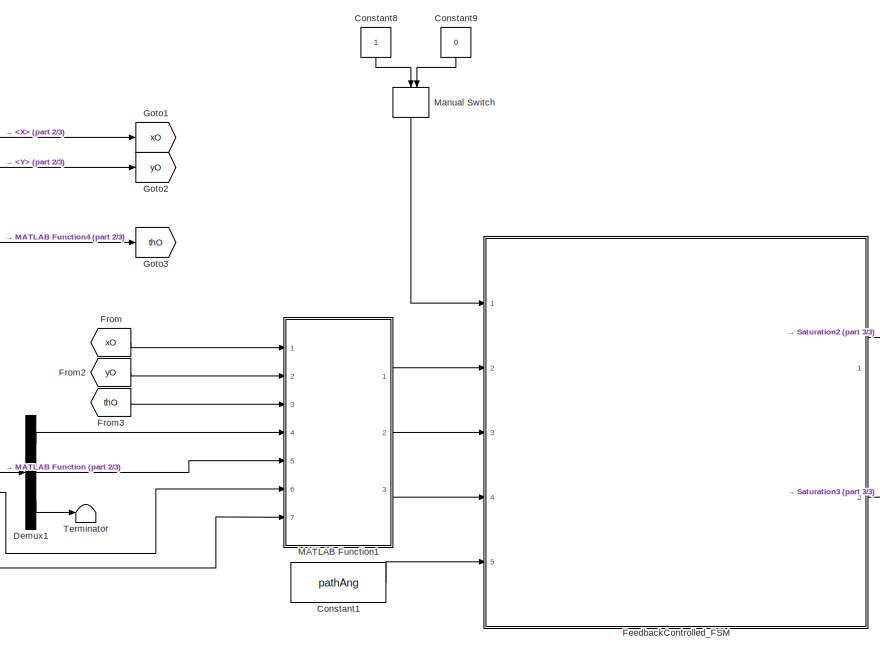
[diagram: root canvas - part 1/3, center side, full height]
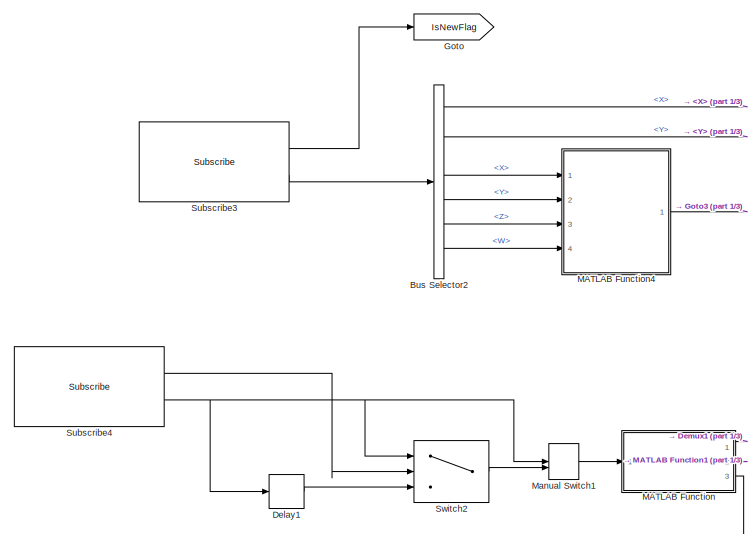
[diagram: root canvas - part 2/3, left side, full height]
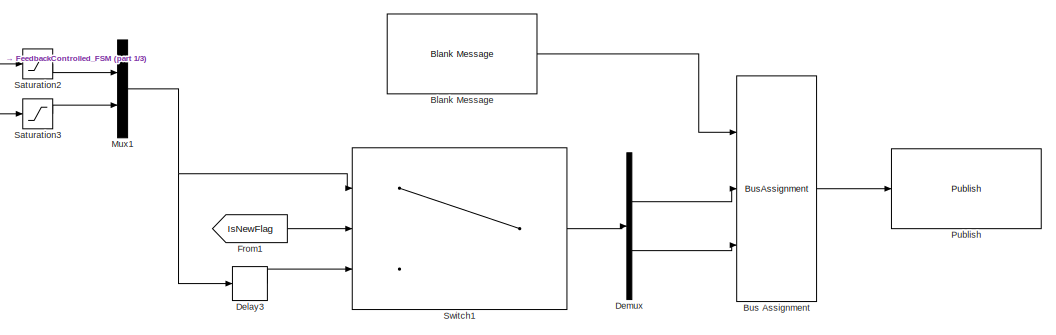
[diagram: root canvas - part 3/3, bottom right region]
MODEL slx_049c260a0925
KIND model
CONFIG AbsTol = auto
CONFIG EnableMultiTasking = off
CONFIG FixedStep = 0.1
CONFIG MaxStep = auto
CONFIG MinStep = auto
CONFIG RelTol = 1e-3
CONFIG SampleTimeConstraint = Unconstrained
CONFIG SolverName = FixedStepAuto
CONFIG StartTime = 0.0
CONFIG StopTime = inf
BLOCK [Reference] Blank Message  REF=robotlib/Blank Message
  Ports = [0, 1]
  SourceBlock = robotlib/Blank Message
  SourceProductBaseCode = RR
  SourceType = ROS Blank Message
BLOCK [BusAssignment] Bus Assignment
  AssignedSignals = Linear.X,Angular.Z
  Ports = [3, 1]
BLOCK [BusSelector] Bus Selector2
  OutputSignals = Pose.Pose.Position.X,Pose.Pose.Position.Y,Pose.Pose.Orientation.X,Pose.Pose.Orientation.Y,Pose.Pose.Orientation.Z,Pose.Pose.Orientation.W
  Ports = [1, 6]
BLOCK [Constant] Constant1
  Value = pathAng
BLOCK [Constant] Constant8
  NameLocation = left
BLOCK [Constant] Constant9
  NameLocation = left
  Value = 0
BLOCK [Delay] Delay1
  DelayLength = 1
  InputPortMap = u0
  Ports = [1, 1]
BLOCK [Delay] Delay3
  DelayLength = 1
  InputPortMap = u0
  Ports = [1, 1]
BLOCK [Demux] Demux
  Outputs = 2
  Ports = [1, 2]
BLOCK [Demux] Demux1
  Outputs = 3
  Ports = [1, 3]
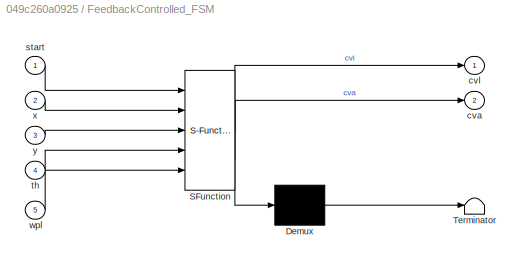
BLOCK [SubSystem] FeedbackControlled_FSM
  ErrorFcn = Stateflow.Translate.translate
  PermitHierarchicalResolution = ExplicitOnly
  Ports = [5, 2]
  RequestExecContextInheritance = off
  SFBlockType = Chart
  TreatAsAtomicUnit = on
BLOCK [Demux] FeedbackControlled_FSM/ Demux 
  Outputs = 1
  Ports = [1, 1]
BLOCK [S-Function] FeedbackControlled_FSM/ SFunction 
  EnableBusSupport = on
  FunctionName = sf_sfun
  PortCounts = [5 3]
  Ports = [5, 3]
  SFcnIsStateOwnerBlock = off
  SFunctionDeploymentMode = off
  Tag = Stateflow S-Function 10
BLOCK [Terminator] FeedbackControlled_FSM/ Terminator 
BLOCK [Outport] FeedbackControlled_FSM/cva
  Port = 2
BLOCK [Outport] FeedbackControlled_FSM/cvl
BLOCK [Inport] FeedbackControlled_FSM/start
BLOCK [Inport] FeedbackControlled_FSM/th
  Port = 4
BLOCK [Inport] FeedbackControlled_FSM/wpl
  Port = 5
BLOCK [Inport] FeedbackControlled_FSM/x
  Port = 2
BLOCK [Inport] FeedbackControlled_FSM/y
  Port = 3
BLOCK [From] From
  GotoTag = xO
BLOCK [From] From1
  GotoTag = IsNewFlag
BLOCK [From] From2
  GotoTag = yO
BLOCK [From] From3
  GotoTag = thO
BLOCK [Goto] Goto
  GotoTag = IsNewFlag
BLOCK [Goto] Goto1
  GotoTag = xO
BLOCK [Goto] Goto2
  GotoTag = yO
BLOCK [Goto] Goto3
  GotoTag = thO
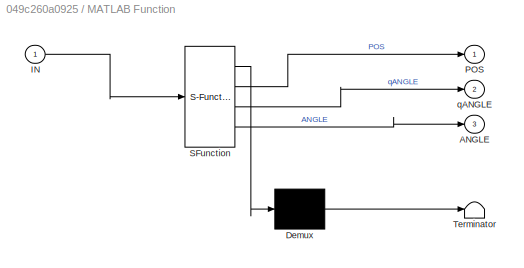
BLOCK [SubSystem] MATLAB Function
  ErrorFcn = Stateflow.Translate.translate
  PermitHierarchicalResolution = ExplicitOnly
  Ports = [1, 3]
  RequestExecContextInheritance = off
  SFBlockType = MATLAB Function
  TreatAsAtomicUnit = on
BLOCK [Demux] MATLAB Function/ Demux 
  Outputs = 1
  Ports = [1, 1]
BLOCK [S-Function] MATLAB Function/ SFunction 
  EnableBusSupport = on
  FunctionName = sf_sfun
  PortCounts = [1 4]
  Ports = [1, 4]
  SFcnIsStateOwnerBlock = off
  SFunctionDeploymentMode = off
  Tag = Stateflow S-Function 2
BLOCK [Terminator] MATLAB Function/ Terminator 
BLOCK [Outport] MATLAB Function/ANGLE
  Port = 3
BLOCK [Inport] MATLAB Function/IN
BLOCK [Outport] MATLAB Function/POS
BLOCK [Outport] MATLAB Function/qANGLE
  Port = 2
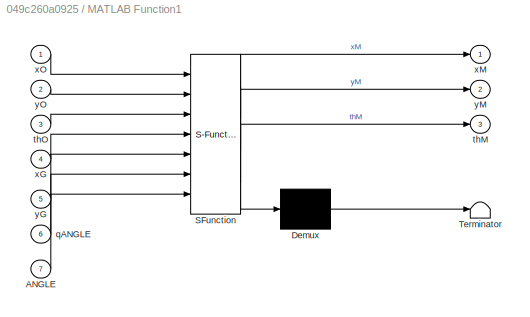
BLOCK [SubSystem] MATLAB Function1
  ErrorFcn = Stateflow.Translate.translate
  PermitHierarchicalResolution = ExplicitOnly
  Ports = [7, 3]
  RequestExecContextInheritance = off
  SFBlockType = MATLAB Function
  TreatAsAtomicUnit = on
BLOCK [Demux] MATLAB Function1/ Demux 
  Outputs = 1
  Ports = [1, 1]
BLOCK [S-Function] MATLAB Function1/ SFunction 
  EnableBusSupport = on
  FunctionName = sf_sfun
  PortCounts = [7 4]
  Ports = [7, 4]
  SFcnIsStateOwnerBlock = off
  SFunctionDeploymentMode = off
  Tag = Stateflow S-Function 1
BLOCK [Terminator] MATLAB Function1/ Terminator 
BLOCK [Inport] MATLAB Function1/ANGLE
  Port = 7
BLOCK [Inport] MATLAB Function1/qANGLE
  Port = 6
BLOCK [Outport] MATLAB Function1/thM
  Port = 3
BLOCK [Inport] MATLAB Function1/thO
  Port = 3
BLOCK [Inport] MATLAB Function1/xG
  Port = 4
BLOCK [Outport] MATLAB Function1/xM
BLOCK [Inport] MATLAB Function1/xO
BLOCK [Inport] MATLAB Function1/yG
  Port = 5
BLOCK [Outport] MATLAB Function1/yM
  Port = 2
BLOCK [Inport] MATLAB Function1/yO
  Port = 2
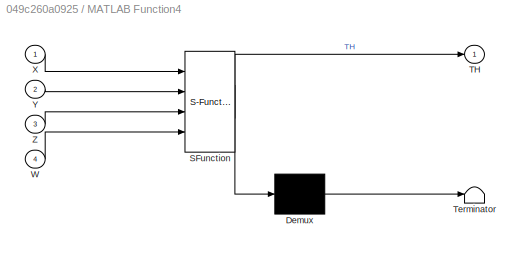
BLOCK [SubSystem] MATLAB Function4
  ErrorFcn = Stateflow.Translate.translate
  PermitHierarchicalResolution = ExplicitOnly
  Ports = [4, 1]
  RequestExecContextInheritance = off
  SFBlockType = MATLAB Function
  TreatAsAtomicUnit = on
BLOCK [Demux] MATLAB Function4/ Demux 
  Outputs = 1
  Ports = [1, 1]
BLOCK [S-Function] MATLAB Function4/ SFunction 
  EnableBusSupport = on
  FunctionName = sf_sfun
  PortCounts = [4 2]
  Ports = [4, 2]
  SFcnIsStateOwnerBlock = off
  SFunctionDeploymentMode = off
  Tag = Stateflow S-Function 11
BLOCK [Terminator] MATLAB Function4/ Terminator 
BLOCK [Outport] MATLAB Function4/TH
BLOCK [Inport] MATLAB Function4/W
  Port = 4
BLOCK [Inport] MATLAB Function4/X
BLOCK [Inport] MATLAB Function4/Y
  Port = 2
BLOCK [Inport] MATLAB Function4/Z
  Port = 3
BLOCK [ManualSwitch] Manual Switch
  NameLocation = left
BLOCK [ManualSwitch] Manual Switch1
  CurrentSetting = 0
BLOCK [Mux] Mux1
  DisplayOption = bar
  Inputs = 2
  Ports = [2, 1]
BLOCK [Reference] Publish  REF=robotlib/Publish
  Ports = [1]
  SourceBlock = robotlib/Publish
  SourceProductBaseCode = RR
  SourceType = ROS Publish
BLOCK [Saturate] Saturation2
  LowerLimit = -0.2
  UpperLimit = 0.2
BLOCK [Saturate] Saturation3
  LowerLimit = -0.4
  UpperLimit = 0.4
BLOCK [Reference] Subscribe3  REF=robotlib/Subscribe
  Ports = [0, 2]
  SourceBlock = robotlib/Subscribe
  SourceProductBaseCode = RR
  SourceType = ROS Subscribe
BLOCK [Reference] Subscribe4  REF=robotlib/Subscribe
  Ports = [0, 2]
  SourceBlock = robotlib/Subscribe
  SourceProductBaseCode = RR
  SourceType = ROS Subscribe
BLOCK [Switch] Switch1
  Criteria = u2 ~= 0
  InputSameDT = off
  SaturateOnIntegerOverflow = off
BLOCK [Switch] Switch2
  Criteria = u2 ~= 0
  InputSameDT = off
  SaturateOnIntegerOverflow = off
BLOCK [Terminator] Terminator
LINE Blank Message:1 -> Bus Assignment:1
LINE Bus Assignment:1 -> Publish:1
LINE Bus Selector2:1 -> Goto1:1
LINE Bus Selector2:2 -> Goto2:1
LINE Bus Selector2:3 -> MATLAB Function4:1
LINE Bus Selector2:4 -> MATLAB Function4:2
LINE Bus Selector2:5 -> MATLAB Function4:3
LINE Bus Selector2:6 -> MATLAB Function4:4
LINE Constant1:1 -> FeedbackControlled_FSM:5
LINE Constant8:1 -> Manual Switch:1
LINE Constant9:1 -> Manual Switch:2
LINE Delay1:1 -> Switch2:3
LINE Delay3:1 -> Switch1:3
LINE Demux1:1 -> MATLAB Function1:4
LINE Demux1:2 -> MATLAB Function1:5
LINE Demux1:3 -> Terminator:1
LINE Demux:1 -> Bus Assignment:2
LINE Demux:2 -> Bus Assignment:3
LINE FeedbackControlled_FSM:1 -> Saturation2:1
LINE FeedbackControlled_FSM:2 -> Saturation3:1
LINE From1:1 -> Switch1:2
LINE From2:1 -> MATLAB Function1:2
LINE From3:1 -> MATLAB Function1:3
LINE From:1 -> MATLAB Function1:1
LINE MATLAB Function1:1 -> FeedbackControlled_FSM:2
LINE MATLAB Function1:2 -> FeedbackControlled_FSM:3
LINE MATLAB Function1:3 -> FeedbackControlled_FSM:4
LINE MATLAB Function4:1 -> Goto3:1
LINE MATLAB Function:1 -> Demux1:1
LINE MATLAB Function:2 -> MATLAB Function1:6
LINE MATLAB Function:3 -> MATLAB Function1:7
LINE Manual Switch1:1 -> MATLAB Function:1
LINE Manual Switch:1 -> FeedbackControlled_FSM:1
NET Mux1:1 -> Delay3:1, Switch1:1
LINE Saturation2:1 -> Mux1:1
LINE Saturation3:1 -> Mux1:2
LINE Subscribe3:1 -> Goto:1
LINE Subscribe3:2 -> Bus Selector2:1
LINE Subscribe4:1 -> Switch2:2
NET Subscribe4:2 -> Delay1:1, Manual Switch1:1, Switch2:1
LINE Switch1:1 -> Demux:1
LINE Switch2:1 -> Manual Switch1:2
note: NET lines group one-source signal fan-out (src -> all destinations, sorted); 1:1 wires keep LINE
CHART MATLAB Function1 states=1 transitions=1
  STATE_LABEL 'eML_blk_kernel()'
  STATE_LABEL 'SCRIPT:\nfunction [xM, yM, thM] = fcn(xO, yO, thO, xG, yG, qANGLE, ANGLE)\n\nswV = 1;\n\nif swV == 0\n%   hp: same orientation\n    xM = xG + xO;\n    yM = yG + yO;\n    thM = thO;\n\nelseif swV == 1\n%   hp: simplified different orientation\n    R = quat2rotm(qANGLE);\n    \n    tmp = R(1:2, 1:2)*[xO; yO];\n    xOp = tmp(1);\n    yOp = tmp(2);\n    \n    xM = xG + xOp;\n    yM = yG + yOp;\n    thM = thO + ANGLE(1);\ne...<+247ch>'
CHART MATLAB Function states=1 transitions=1
  STATE_LABEL 'eML_blk_kernel()'
  STATE_LABEL 'SCRIPT:\nfunction [POS, qANGLE, ANGLE]  =  fcn(IN)\n\nu = IN.Covariance;\n\nx = -u(1);\ny = -u(2);\nz = -u(3);\n\nX = -u(4);\nY = -u(5);\nZ = -u(6);\nW =  u(7);\n\nPOS = [x, y, z];\nqANGLE =  [W, X, Y, Z];\nANGLE = quat2eul(qANGLE);\n\n\nend\n\n'
CHART FeedbackControlled_FSM states=7 transitions=9
  STATE_LABEL 'Still\ncvl = 0;\ncva = 0;\nindex = 1;\nkPL = 0.5;\nkPA = 2.2;\noverT = 1;\nDist = 0;\nErrTh = 0;\nsDSw = 0;\ncvlFix = 0;\nSW = 0;\nTc =0;\n'
  STATE_LABEL 'FBMotion\n[Dist, ErrTh] = disterrfun(x, y, th, wpl, index);\n[cvl, SW] = cvlCalc(Dist, index, wpl, cvl, Tc, SW, ErrTh);\ncva = cvaCalc(ErrTh);'
  STATE_LABEL '[dist, errTh] = disterrfun(X, Y, Th, WPL, IND)'
  STATE_LABEL 'SCRIPT:\nfunction [dist, errTh] = disterrfun(X, Y, Th, WPL, IND)\n \ntol = 1e-2;\n\nPOSr = WPL(IND, :);\n\nXr = POSr(1);\nYr = POSr(2);\nThr = POSr(3);\n\nGr = Thr;\n\nZ = (Xr - X) + 1i*(Yr - Y);\ndist = abs(Z);\n\nif dist <= 0.2\n    if (Th > tol) && (- pi + tol < Gr && Gr < - pi/2 - tol)\n        Gr = Gr + 2*pi;\n    elseif (- pi + tol < Th && Th < - pi/2 - tol) && (Gr > tol)\n        Th = Th + 2*pi;\n    end\nelse\n ...<+230ch>'
  STATE_LABEL '[CVL, swout]  = cvlCalc(dist, ind, WPL, CVLin, tC, sw, th)'
  STATE_LABEL 'SCRIPT:\nfunction [CVL, swout]  = cvlCalc(dist, ind, WPL, CVLin, tC, sw, th)\n\npersistent a\n\nC = 1.25;\nkR1 = 0.1;\nkR2 = 0.5;\n\na3 = 0.005;\n\ncvlTh = 0.08;\n\nTH = WPL(ind, 3);\n\nif dist <= 0.5 && sw == 0\n% this part calculates the deceleration \n\tcvlin0 = CVLin;\n    if 1e-2 - pi/2 < abs(TH - th) && abs(TH - th) < pi + 1e-2\n        a = ((kR1*cvlin0)^2 - cvlin0^2)*C;\n        a = 5*a;\n    else\n        a = ((...<+276ch>'
  STATE_LABEL 'Stop\ncvl = 0;\ncva = 0;\n'
  STATE_LABEL 'CVA = cvaCalc(ETH)'
  STATE_LABEL 'SCRIPT:\nfunction CVA = cvaCalc(ETH)\n\nk1 = 1.8;\nk2 = 0.8;\n\ntol = 90 * pi/180;\n\nif abs(ETH) > tol\n    CVA = k1*ETH;\nelse\n    CVA = k2*ETH;\nend\n'
  STATE_LABEL 'Turning\n[Dist, ErrTh] = disterrfun(x, y, th, wpl, index);\ncvl = cvlFix;\ncva = (1*kPA)*ErrTh;\n'
CHART MATLAB Function4 states=1 transitions=1
  STATE_LABEL 'eML_blk_kernel()'
  STATE_LABEL 'SCRIPT:\nfunction TH = fromQuat2Eu(X, Y, Z, W)\n\nANGLE = quat2eul([W, X, Y, Z]);\n\nTH = ANGLE(1);'
CHART  states=0 transitions=0
CHART  states=0 transitions=0
CHART  states=0 transitions=0
CHART  states=0 transitions=0
